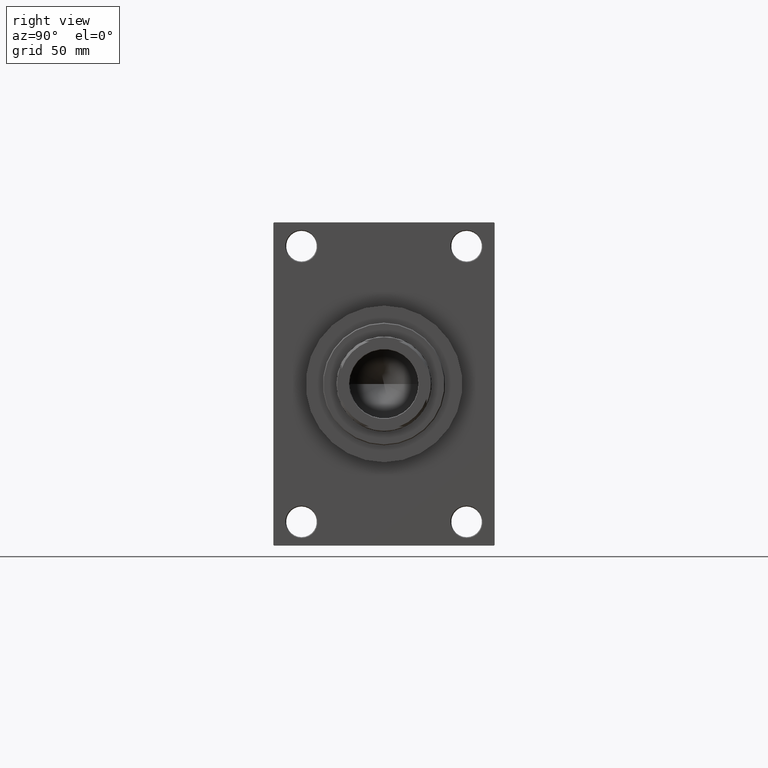
[diagram: clean part render]
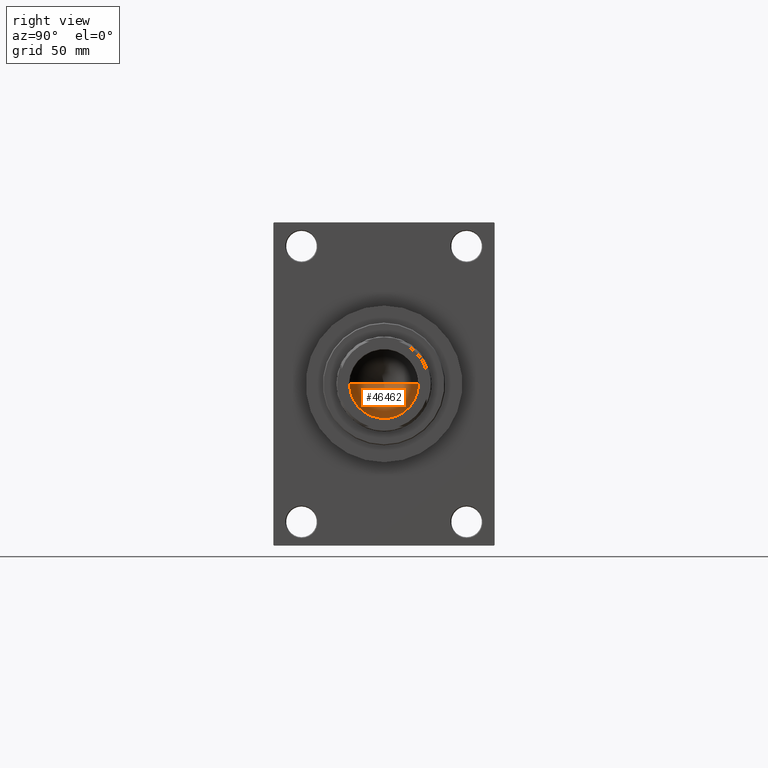
[diagram: same view with one face highlighted and labeled with its STEP entity id]
A machine part, right view. The second image highlights one B-rep face of the part: STEP entity #46462.
In plain terms, the highlighted conical surface has half-angle 59 deg.
Its self-contained STEP definition (entity closure, byte-faithful):
#3378 = FACE_OUTER_BOUND ( 'NONE', #42922, .T. ) ;
#6252 = VERTEX_POINT ( 'NONE', #14682 ) ;
#6418 = VERTEX_POINT ( 'NONE', #10512 ) ;
#6608 = DIRECTION ( 'NONE',  ( -0.8571673007021112234, 1.049727191138617340E-16, 0.5150380749100560429 ) ) ;
#7708 = EDGE_CURVE ( 'NONE', #39721, #6418, #13590, .T. ) ;
#8104 = EDGE_CURVE ( 'NONE', #6418, #6252, #43292, .T. ) ;
#10512 = CARTESIAN_POINT ( 'NONE',  ( 20.24999999999998934, 0.000000000000000000, 237.0000000000000568 ) ) ;
#10651 = AXIS2_PLACEMENT_3D ( 'NONE', #21001, #25109, #18108 ) ;
#12275 = VECTOR ( 'NONE', #6608, 1000.000000000000000 ) ;
#12432 = ORIENTED_EDGE ( 'NONE', *, *, #7708, .T. ) ;
#13590 = LINE ( 'NONE', #32430, #37139 ) ;
#13861 = CARTESIAN_POINT ( 'NONE',  ( -20.24999999999998934, 2.479909768273389117E-15, 237.0000000000000568 ) ) ;
#14682 = CARTESIAN_POINT ( 'NONE',  ( -20.24999999999998934, 2.479909768273389117E-15, 237.0000000000000568 ) ) ;
#17464 = DIRECTION ( 'NONE',  ( 0.8571673007021112234, 0.000000000000000000, 0.5150380749100560429 ) ) ;
#17650 = CARTESIAN_POINT ( 'NONE',  ( 0.000000000000000000, 0.000000000000000000, 237.0000000000000568 ) ) ;
#18108 = DIRECTION ( 'NONE',  ( 1.000000000000000000, 0.000000000000000000, 0.000000000000000000 ) ) ;
#19214 = ORIENTED_EDGE ( 'NONE', *, *, #8104, .T. ) ;
#21001 = CARTESIAN_POINT ( 'NONE',  ( 0.000000000000000000, 0.000000000000000000, 237.0000000000000568 ) ) ;
#21592 = LINE ( 'NONE', #13861, #12275 ) ;
#25109 = DIRECTION ( 'NONE',  ( -0.000000000000000000, -0.000000000000000000, 1.000000000000000000 ) ) ;
#25306 = CONICAL_SURFACE ( 'NONE', #10651, 20.24999999999998934, 1.029744258676652313 ) ;
#28026 = DIRECTION ( 'NONE',  ( 1.000000000000000000, 0.000000000000000000, 0.000000000000000000 ) ) ;
#29454 = EDGE_CURVE ( 'NONE', #39721, #6252, #21592, .T. ) ;
#32430 = CARTESIAN_POINT ( 'NONE',  ( 20.24999999999998934, 0.000000000000000000, 237.0000000000000568 ) ) ;
#37139 = VECTOR ( 'NONE', #17464, 1000.000000000000000 ) ;
#38088 = CARTESIAN_POINT ( 'NONE',  ( -1.584115414415908206E-14, 0.000000000000000000, 224.8325724646919070 ) ) ;
#39721 = VERTEX_POINT ( 'NONE', #38088 ) ;
#42922 = EDGE_LOOP ( 'NONE', ( #43023, #12432, #19214 ) ) ;
#43023 = ORIENTED_EDGE ( 'NONE', *, *, #29454, .F. ) ;
#43292 = CIRCLE ( 'NONE', #47161, 20.24999999999998934 ) ;
#46462 = ADVANCED_FACE ( 'NONE', ( #3378 ), #25306, .F. ) ;
#47095 = DIRECTION ( 'NONE',  ( -0.000000000000000000, -0.000000000000000000, 1.000000000000000000 ) ) ;
#47161 = AXIS2_PLACEMENT_3D ( 'NONE', #17650, #47095, #28026 ) ;